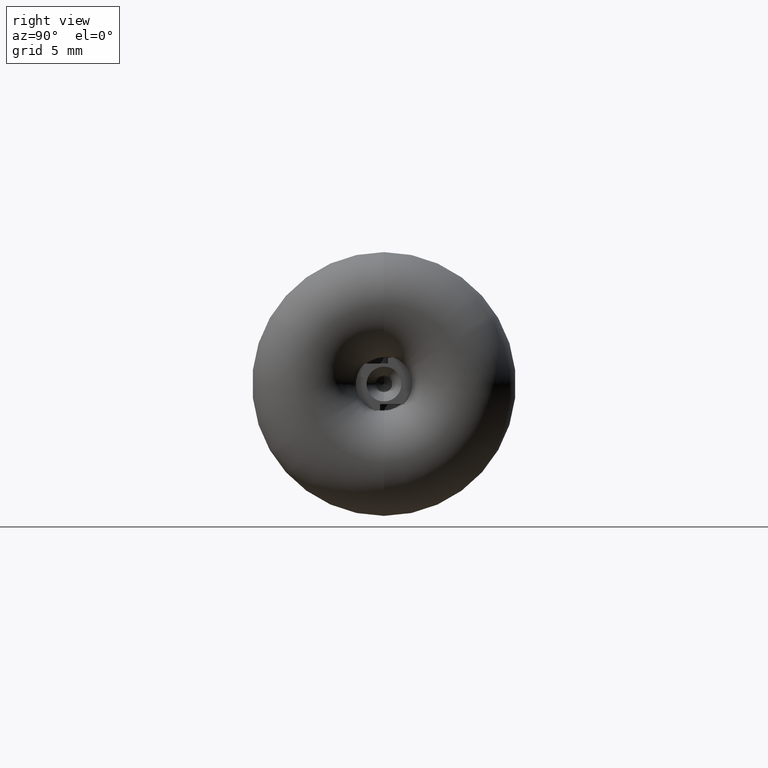
[diagram: clean part render]
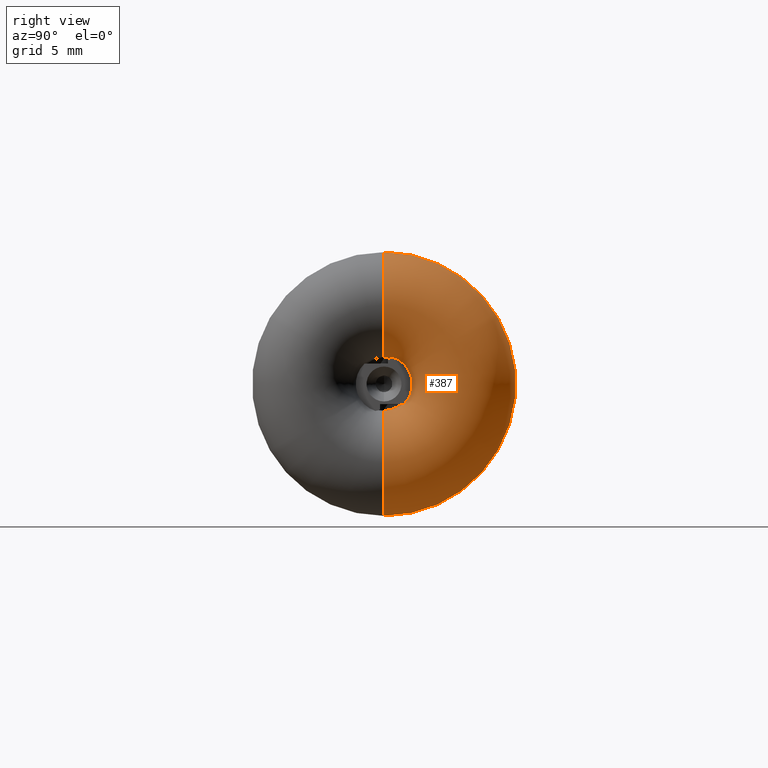
[diagram: same view with one face highlighted and labeled with its STEP entity id]
A machine part, right view. The second image highlights one B-rep face of the part: STEP entity #387.
In plain terms, the highlighted toroidal blend (fillet) surface has major radius 6.0061 mm and minor (blend) radius 4 mm.
Its self-contained STEP definition (entity closure, byte-faithful):
#117 = CARTESIAN_POINT ( 'NONE',  ( -2.530974987302006900, 0.3873569697407858200, 1.968313835782103900 ) ) ;
#180 = DIRECTION ( 'NONE',  ( 0.0000000000000000000, 0.0000000000000000000, -1.000000000000000000 ) ) ;
#195 = CARTESIAN_POINT ( 'NONE',  ( -2.889773221862426100, 0.0000000000000000000, 0.0000000000000000000 ) ) ;
#225 = EDGE_CURVE ( 'NONE', #2847, #3186, #3555, .T. ) ;
#258 = AXIS2_PLACEMENT_3D ( 'NONE', #195, #462, #2155 ) ;
#362 = VERTEX_POINT ( 'NONE', #2931 ) ;
#387 = ADVANCED_FACE ( 'NONE', ( #3025 ), #2468, .T. ) ;
#434 = DIRECTION ( 'NONE',  ( 0.0000000000000000000, 0.0000000000000000000, 1.000000000000000000 ) ) ;
#454 = DIRECTION ( 'NONE',  ( 0.0000000000000000000, 0.0000000000000000000, -1.000000000000000000 ) ) ;
#462 = DIRECTION ( 'NONE',  ( 1.000000000000000000, -0.0000000000000000000, -0.0000000000000000000 ) ) ;
#500 = AXIS2_PLACEMENT_3D ( 'NONE', #1850, #2172, #454 ) ;
#592 = CIRCLE ( 'NONE', #1002, 2.141693890339094100 ) ;
#615 = CARTESIAN_POINT ( 'NONE',  ( -2.889773221862426600, 2.456723521160928800E-016, 2.006066992435202600 ) ) ;
#663 = CARTESIAN_POINT ( 'NONE',  ( -2.535457270089017900, 1.300931425338245600, -1.542927206851577600 ) ) ;
#853 = EDGE_CURVE ( 'NONE', #2276, #362, #2208, .T. ) ;
#977 = DIRECTION ( 'NONE',  ( 1.000000000000000000, -0.0000000000000000000, -0.0000000000000000000 ) ) ;
#986 = CARTESIAN_POINT ( 'NONE',  ( -1.856999999999999300, 0.0000000000000000000, 0.0000000000000000000 ) ) ;
#1002 = AXIS2_PLACEMENT_3D ( 'NONE', #986, #2069, #434 ) ;
#1027 = DIRECTION ( 'NONE',  ( 1.000000000000000000, -0.0000000000000000000, -0.0000000000000000000 ) ) ;
#1075 = ORIENTED_EDGE ( 'NONE', *, *, #225, .F. ) ;
#1110 = EDGE_CURVE ( 'NONE', #1216, #1400, #592, .T. ) ;
#1149 = ORIENTED_EDGE ( 'NONE', *, *, #3620, .F. ) ;
#1152 = DIRECTION ( 'NONE',  ( 0.0000000000000000000, 1.000000000000000000, -1.224646799147353200E-016 ) ) ;
#1158 = CARTESIAN_POINT ( 'NONE',  ( -2.889773221862426100, 0.0000000000000000000, -10.00606699243520300 ) ) ;
#1216 = VERTEX_POINT ( 'NONE', #2776 ) ;
#1230 = CARTESIAN_POINT ( 'NONE',  ( -2.022557340143427600, 1.421539870442018800, -1.542927206851577400 ) ) ;
#1332 = EDGE_LOOP ( 'NONE', ( #2646, #2131, #3395, #1149, #1414, #2036, #1336, #1075 ) ) ;
#1336 = ORIENTED_EDGE ( 'NONE', *, *, #3210, .F. ) ;
#1353 = AXIS2_PLACEMENT_3D ( 'NONE', #1687, #1152, #3382 ) ;
#1400 = VERTEX_POINT ( 'NONE', #2874 ) ;
#1410 = DIRECTION ( 'NONE',  ( 0.0000000000000000000, 0.0000000000000000000, -1.000000000000000000 ) ) ;
#1414 = ORIENTED_EDGE ( 'NONE', *, *, #3485, .T. ) ;
#1452 = CARTESIAN_POINT ( 'NONE',  ( -2.889773221862426600, 1.282061001861926300, -1.542927206851577400 ) ) ;
#1549 = AXIS2_PLACEMENT_3D ( 'NONE', #2404, #1027, #180 ) ;
#1687 = CARTESIAN_POINT ( 'NONE',  ( -2.889773221862426100, 7.355310717750341100E-016, 6.006066992435203000 ) ) ;
#1699 = CARTESIAN_POINT ( 'NONE',  ( -2.889773221862426100, 0.0000000000000000000, -6.006066992435203000 ) ) ;
#1774 = AXIS2_PLACEMENT_3D ( 'NONE', #1699, #3071, #1410 ) ;
#1847 = AXIS2_PLACEMENT_3D ( 'NONE', #2676, #977, #3482 ) ;
#1850 = CARTESIAN_POINT ( 'NONE',  ( -2.889773221862426600, 0.0000000000000000000, 0.0000000000000000000 ) ) ;
#2036 = ORIENTED_EDGE ( 'NONE', *, *, #1110, .T. ) ;
#2037 = VERTEX_POINT ( 'NONE', #2922 ) ;
#2065 = CARTESIAN_POINT ( 'NONE',  ( -1.856999999999983600, 0.6547959627594925900, 2.039140742339694800 ) ) ;
#2069 = DIRECTION ( 'NONE',  ( -1.000000000000000000, 0.0000000000000000000, 0.0000000000000000000 ) ) ;
#2089 = CARTESIAN_POINT ( 'NONE',  ( -2.181245974655299200, 0.4994671705643399800, 1.998004415410210800 ) ) ;
#2131 = ORIENTED_EDGE ( 'NONE', *, *, #853, .T. ) ;
#2155 = DIRECTION ( 'NONE',  ( 0.0000000000000000000, 0.0000000000000000000, -1.000000000000000000 ) ) ;
#2161 = B_SPLINE_CURVE_WITH_KNOTS ( 'NONE', 3,
 ( #1452, #2854, #663, #3129, #1230, #3404 ),
 .UNSPECIFIED., .F., .F.,
 ( 4, 2, 4 ),
 ( 0.0007291028378100289500, 0.001255257831813783700, 0.001781412825817538500 ),
 .UNSPECIFIED. ) ;
#2172 = DIRECTION ( 'NONE',  ( 1.000000000000000000, -0.0000000000000000000, -0.0000000000000000000 ) ) ;
#2208 = CIRCLE ( 'NONE', #1549, 10.00606699243520300 ) ;
#2276 = VERTEX_POINT ( 'NONE', #1158 ) ;
#2404 = CARTESIAN_POINT ( 'NONE',  ( -2.889773221862426100, 0.0000000000000000000, 0.0000000000000000000 ) ) ;
#2468 = TOROIDAL_SURFACE ( 'NONE', #258, 6.006066992435203000, 4.000000000000000000 ) ;
#2486 = CIRCLE ( 'NONE', #1353, 4.000000000000000000 ) ;
#2573 = CIRCLE ( 'NONE', #1774, 4.000000000000000000 ) ;
#2628 = CARTESIAN_POINT ( 'NONE',  ( -2.889773221862426600, 0.3873569697407843700, 1.968313835782103500 ) ) ;
#2646 = ORIENTED_EDGE ( 'NONE', *, *, #2797, .F. ) ;
#2676 = CARTESIAN_POINT ( 'NONE',  ( -2.889773221862426600, 0.0000000000000000000, 0.0000000000000000000 ) ) ;
#2751 = EDGE_CURVE ( 'NONE', #362, #3181, #2486, .T. ) ;
#2776 = CARTESIAN_POINT ( 'NONE',  ( -1.856999999999983600, 0.6547959627594925900, 2.039140742339694800 ) ) ;
#2797 = EDGE_CURVE ( 'NONE', #2276, #2847, #2573, .T. ) ;
#2847 = VERTEX_POINT ( 'NONE', #3345 ) ;
#2854 = CARTESIAN_POINT ( 'NONE',  ( -2.713365316217416700, 1.282061001862911700, -1.542927206851577400 ) ) ;
#2874 = CARTESIAN_POINT ( 'NONE',  ( -1.856999999999999300, 1.485337791303040100, -1.542927206851577400 ) ) ;
#2878 = CARTESIAN_POINT ( 'NONE',  ( -2.889773221862426600, 1.282061001861926300, -1.542927206851577400 ) ) ;
#2922 = CARTESIAN_POINT ( 'NONE',  ( -2.889773221862426600, 0.3873569697407843700, 1.968313835782103500 ) ) ;
#2931 = CARTESIAN_POINT ( 'NONE',  ( -2.889773221862426100, 1.225389791433975400E-015, 10.00606699243520300 ) ) ;
#3025 = FACE_OUTER_BOUND ( 'NONE', #1332, .T. ) ;
#3061 = B_SPLINE_CURVE_WITH_KNOTS ( 'NONE', 3,
 ( #2628, #117, #2089, #2065 ),
 .UNSPECIFIED., .F., .F.,
 ( 4, 4 ),
 ( 0.002232684580131846200, 0.003304023066951317400 ),
 .UNSPECIFIED. ) ;
#3071 = DIRECTION ( 'NONE',  ( -0.0000000000000000000, -1.000000000000000000, -0.0000000000000000000 ) ) ;
#3129 = CARTESIAN_POINT ( 'NONE',  ( -2.191104727416751000, 1.370784383368791400, -1.542927206851577600 ) ) ;
#3181 = VERTEX_POINT ( 'NONE', #615 ) ;
#3186 = VERTEX_POINT ( 'NONE', #2878 ) ;
#3210 = EDGE_CURVE ( 'NONE', #3186, #1400, #2161, .T. ) ;
#3279 = CIRCLE ( 'NONE', #500, 2.006066992435202600 ) ;
#3345 = CARTESIAN_POINT ( 'NONE',  ( -2.889773221862426600, 0.0000000000000000000, -2.006066992435202600 ) ) ;
#3382 = DIRECTION ( 'NONE',  ( 0.0000000000000000000, 1.224646799147353200E-016, 1.000000000000000000 ) ) ;
#3395 = ORIENTED_EDGE ( 'NONE', *, *, #2751, .T. ) ;
#3404 = CARTESIAN_POINT ( 'NONE',  ( -1.856999999999999300, 1.485337791303040100, -1.542927206851577400 ) ) ;
#3482 = DIRECTION ( 'NONE',  ( 0.0000000000000000000, 0.0000000000000000000, -1.000000000000000000 ) ) ;
#3485 = EDGE_CURVE ( 'NONE', #2037, #1216, #3061, .T. ) ;
#3555 = CIRCLE ( 'NONE', #1847, 2.006066992435202600 ) ;
#3620 = EDGE_CURVE ( 'NONE', #2037, #3181, #3279, .T. ) ;